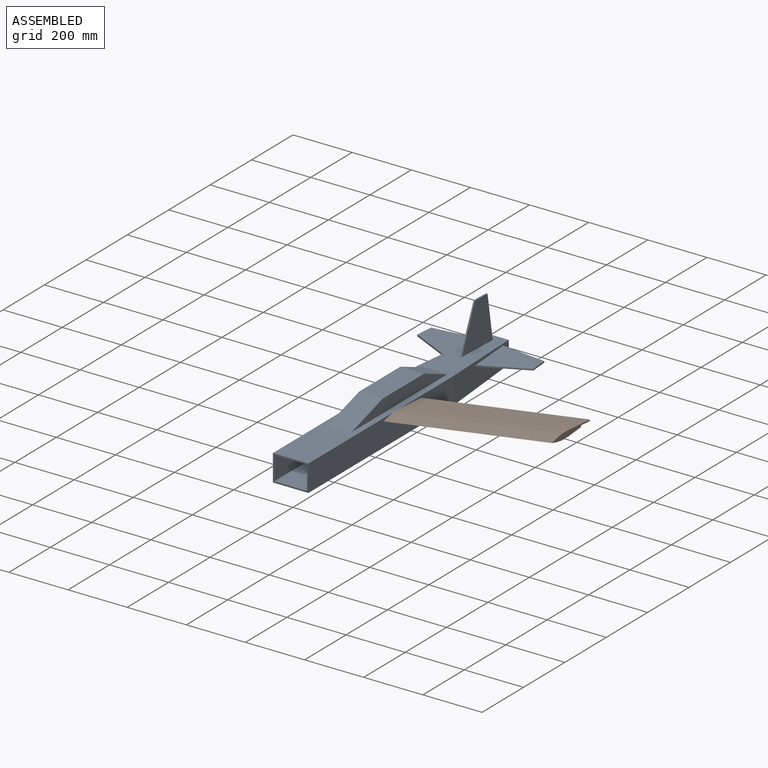
[diagram: assembled view]
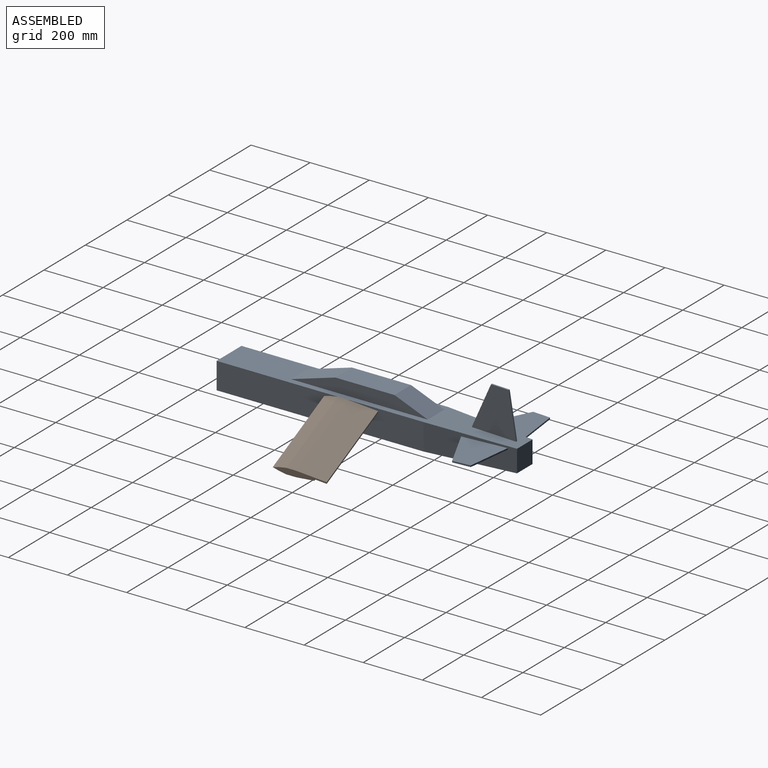
[diagram: assembled view, second angle]
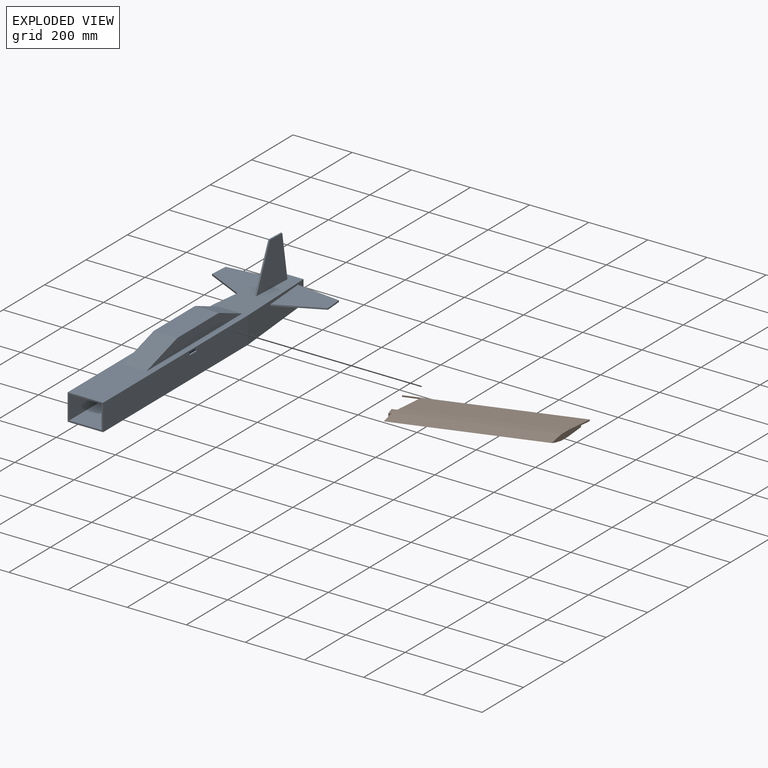
[diagram: exploded view]
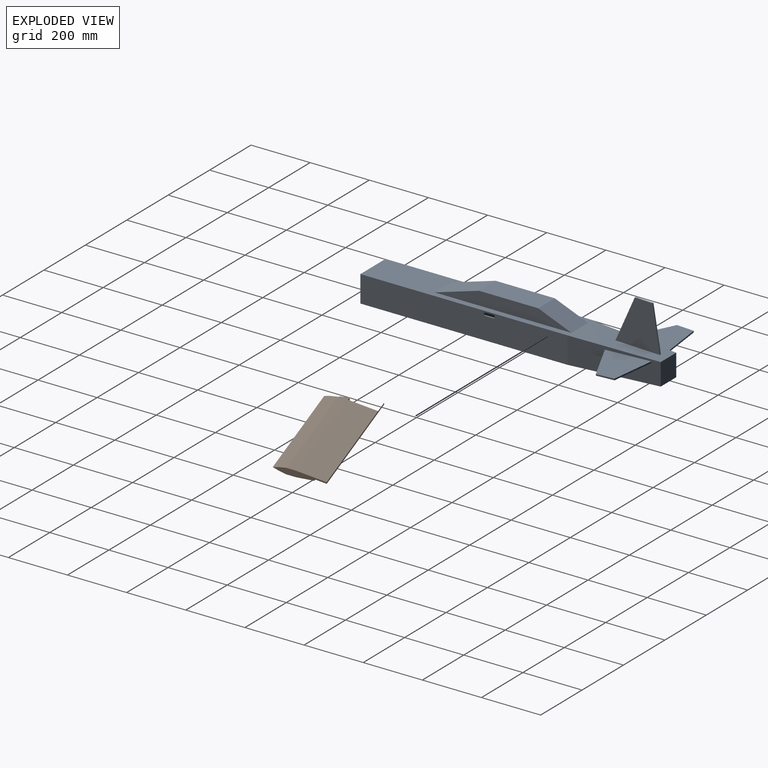
[diagram: exploded view, second angle]
ASSEMBLY  parts=2 mates=2
PART A: 43 faces, bbox 392.1x1000x233.8 mm
  f0: plane 700x90mm, normal (-1,0,0), area 62653.6mm2, adj f3,f6,f7,f12,f31,f40,f41,f42
  f1: plane 700x90mm, normal (1,0,0), area 62653.6mm2, adj f3,f6,f11,f12,f31,f37,f38,f39
  f2: cylinder r=36mm len=100mm, axis (0,-1,0), area 22619.5mm2, adj f35,f36
  f3: plane 120x90mm, normal (0,-1,0), area 2000mm2, adj f0,f1,f6,f12,f31,f32,f33,f34
  f4: plane 59.92x5mm, normal (0,0.03,1), area 299.8mm2, adj f5,f28,f29,f30
  f5: plane 152.91x149.92mm, normal (1,0,0), area 15746.3mm2, adj f4,f14,f29,f30
  f6: plane 700x120mm, normal (0,0,1), area 47000mm2, adj f0,f1,f3,f14,f23,f24,f26
  f7: plane 300x90mm, normal (-1,0.07,0), area 24069.5mm2, adj f0,f13,f14,f15,f18,f20,f21,f22
  f8: plane 156.31x149.58mm, normal (0,0,1), area 15750mm2, adj f9,f11,f16,f17
  f9: plane 59.83x5mm, normal (1,0.07,0), area 300mm2, adj f8,f10,f16,f17
  f10: plane 156.31x149.58mm, normal (0,0,-1), area 15750mm2, adj f9,f11,f16,f17
  f11: plane 300x90mm, normal (1,0.07,0), area 24069.5mm2, adj f1,f8,f10,f13,f14,f15,f16,f17
  f12: plane 700x120mm, normal (0,0,-1), area 84000mm2, adj f0,f1,f3,f15
  f13: plane 75x75mm, normal (0,1,0), area 5625mm2, adj f7,f11,f14,f15
  f14: plane 300x120mm, normal (0,0.03,1), area 28516.2mm2, adj f5,f6,f7,f11,f13,f27,f28,f29
  f15: plane 300x120mm, normal (0,0.02,-1), area 29254.1mm2, adj f7,f11,f12,f13
  f16: plane 145.09x71.05mm, normal (0.44,-0.9,0), area 807.8mm2, adj f8,f9,f10,f11
  f17: plane 151.82x18.7mm, normal (0.12,0.99,0), area 764.9mm2, adj f8,f9,f10,f11
  f18: plane 156.31x149.58mm, normal (0,0,1), area 15750mm2, adj f7,f19,f21,f22
  f19: plane 59.83x5mm, normal (-1,0.07,0), area 300mm2, adj f18,f20,f21,f22
  f20: plane 156.31x149.58mm, normal (0,0,-1), area 15750mm2, adj f7,f19,f21,f22
  f21: plane 145.09x71.05mm, normal (-0.44,-0.9,0), area 807.8mm2, adj f7,f18,f19,f20
  f22: plane 151.82x18.7mm, normal (-0.12,0.99,0), area 764.9mm2, adj f7,f18,f19,f20
  f23: plane 462.5x45mm, normal (-1,0,0), area 14906.3mm2, adj f6,f25,f26,f27
  f24: plane 462.5x45mm, normal (1,0,0), area 14906.3mm2, adj f6,f25,f26,f27
  f25: plane 200x80mm, normal (0,0,1), area 16000mm2, adj f23,f24,f26,f27
  f26: plane 150x80mm, normal (0,-0.29,0.96), area 12528.4mm2, adj f6,f23,f24,f25
  f27: plane 112.5x80mm, normal (0,0.37,0.93), area 9693.3mm2, adj f14,f23,f24,f25
  f28: plane 152.91x149.92mm, normal (-1,0,0), area 15746.3mm2, adj f4,f14,f29,f30
  f29: plane 147.92x65mm, normal (0,-0.92,0.4), area 807.8mm2, adj f4,f5,f14,f28
  f30: plane 150.92x25mm, normal (0,0.99,0.16), area 764.9mm2, adj f4,f5,f14,f28
  f31: plane 700x120mm, normal (0,0,-1), area 77346.4mm2, adj f0,f1,f3,f32,f34,f35,f37,f39
  f32: plane 700x80mm, normal (1,0,0), area 55653.6mm2, adj f3,f31,f33,f35,f40,f41,f42
  f33: plane 700x110mm, normal (0,0,1), area 77000mm2, adj f3,f32,f34,f35
  f34: plane 700x80mm, normal (-1,0,0), area 55653.6mm2, adj f3,f31,f33,f35,f37,f38,f39
  f35: plane 110x80mm, normal (0,-1,0), area 4728.5mm2, adj f2,f31,f32,f33,f34
  f36: plane 72x72mm, normal (0,-1,0), area 4071.5mm2, adj f2
  f37: plane 10x5mm, normal (0,-1,0), area 50mm2, adj f1,f31,f34,f38
  f38: plane 34.64x5mm, normal (0,0,1), area 173.2mm2, adj f1,f34,f37,f39
  f39: plane 10x5mm, normal (0,1,0), area 50mm2, adj f1,f31,f34,f38
  f40: plane 10x5mm, normal (0,1,0), area 50mm2, adj f0,f31,f32,f41
  f41: plane 34.64x5mm, normal (0,0,1), area 173.2mm2, adj f0,f32,f40,f42
  f42: plane 10x5mm, normal (0,-1,0), area 50mm2, adj f0,f31,f32,f41
PART B: 28 faces, bbox 544x173.5x20 mm
  f0: plane 497.35x30mm, normal (0,0,1), area 14628mm2, adj f1,f9,f15,f17
  f1: plane 495.59x24.59mm, normal (0,-0.18,0.98), area 12190mm2, adj f0,f2,f15,f17
  f2: plane 544x19.23mm, normal (0,-0.27,0.96), area 9752mm2, adj f1,f3,f11,f12,f15,f17,f18
  f3: plane 544x19.23mm, normal (0,-0.27,-0.96), area 9752mm2, adj f2,f4,f11,f12,f15,f17,f18
  f4: plane 495.59x24.59mm, normal (0,-0.18,-0.98), area 12190mm2, adj f3,f5,f15,f17
  f5: plane 497.35x30mm, normal (0,0,-1), area 14628mm2, adj f4,f6,f15,f17
  f6: plane 507.02x59.75mm, normal (0,0.09,-1), area 29256mm2, adj f5,f7,f15,f17
  f7: plane 487.6x5mm, normal (0,1,0), area 2438mm2, adj f6,f8,f15,f17
  f8: plane 544x39.97mm, normal (0,-0.07,-1), area 19547mm2, adj f7,f10,f13,f14,f15,f16,f17
  f9: plane 544x99.72mm, normal (0,0.07,1), area 48762.2mm2, adj f0,f10,f13,f14,f15,f16,f17
  f10: plane 5x0.04mm, normal (1,0,0), area 0.2mm2, adj f8,f9,f13,f17
  f11: plane 0x0mm, normal (1,0,0), area 0mm2, adj f2,f3
  f12: plane 0x0mm, normal (-1,0,0), area 0mm2, adj f2,f3
  f13: plane 544x5mm, normal (0,1,0), area 2720mm2, adj f8,f9,f10,f14
  f14: plane 5x0.04mm, normal (-1,0,0), area 0.2mm2, adj f8,f9,f13,f16
  f15: plane 173.5x56.4mm, normal (-0.95,0.31,0), area 2084.8mm2, adj f0,f1,f2,f3,f4,f5,f6,f7
  f16: plane 56.4x5mm, normal (0,-1,0), area 282mm2, adj f8,f9,f14,f15
  f17: plane 173.5x56.4mm, normal (0.95,-0.31,0), area 2295.1mm2, adj f0,f1,f2,f3,f4,f5,f6,f7
  f18: plane 56.4x0mm, normal (0,1,0), area 0mm2, adj f2,f3
  f19: plane 14.25x10mm, normal (0,-1,0), area 142.5mm2, adj f15,f20,f26,f27
  f20: plane 15.69x4.45mm, normal (0,0,-1), area 66.6mm2, adj f15,f19,f21,f27
  f21: plane 15.69x5mm, normal (0,1,0), area 78.5mm2, adj f15,f20,f22,f27
  f22: plane 22.19x20mm, normal (0,0,-1), area 378.8mm2, adj f15,f21,f23,f27
  f23: plane 22.19x5mm, normal (0,-1,0), area 111mm2, adj f15,f22,f24,f27
  f24: plane 24x5.55mm, normal (0,0,-1), area 128.2mm2, adj f15,f23,f25,f27
  f25: plane 24x10mm, normal (0,1,0), area 240mm2, adj f15,f24,f26,f27
  f26: plane 30x24mm, normal (0,0,1), area 573.6mm2, adj f15,f19,f25,f27
  f27: plane 30x10mm, normal (-1,0,0), area 200mm2, adj f19,f20,f21,f22,f23,f24,f25,f26
PLACE A rot(axis=(0,0.15,0.99),0deg) t=(-314.84,-132.23,59.66)mm
PLACE B rot(axis=(0,0,1),18deg) t=(-208.39,-126.81,134.66)mm
MATE planar A.f1 <-> B.f15  axis (1,0,0) through (-194.84,-96.91,144.66)mm
MATE planar B.f26 <-> A.f31  axis (0,0,1) through (-194.84,-106.63,144.66)mm
